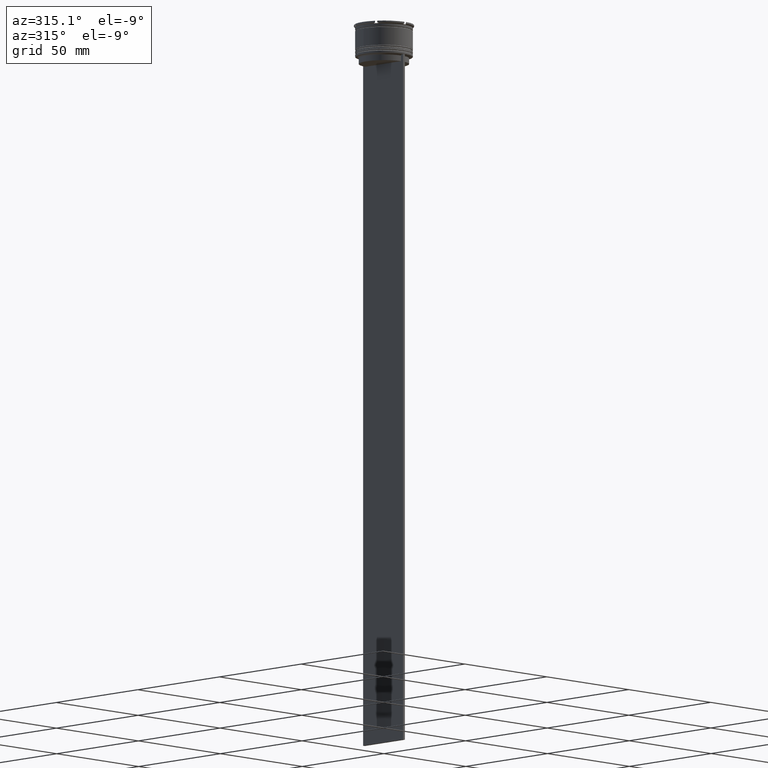
[diagram: clean part render]
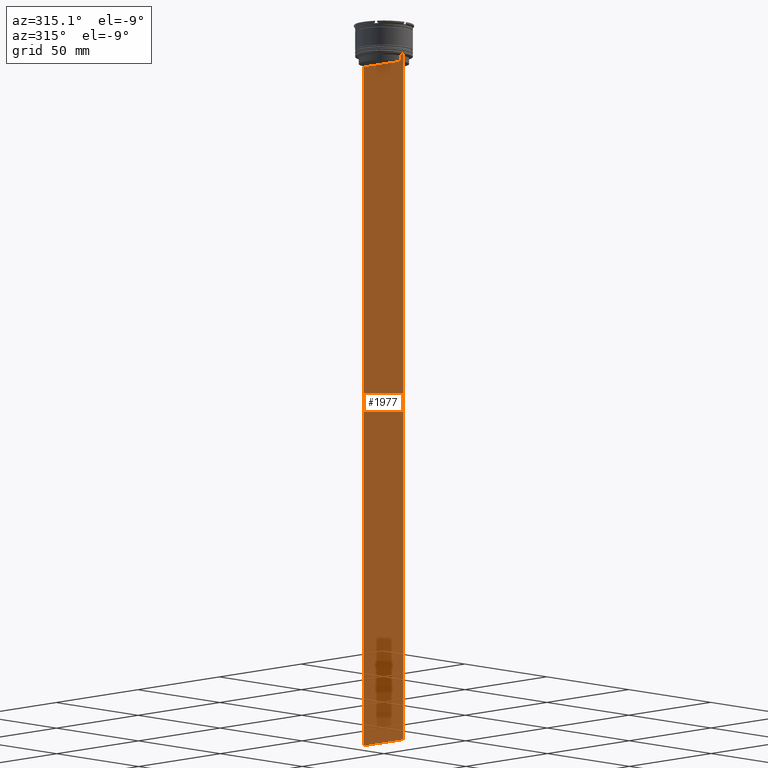
[diagram: same view with one face highlighted and labeled with its STEP entity id]
A machine part, auxiliary view. The second image highlights one B-rep face of the part: STEP entity #1977.
In plain terms, the highlighted planar face has unit normal (-1, 0, 0).
Its self-contained STEP definition (entity closure, byte-faithful):
#48 = CARTESIAN_POINT ( 'NONE',  ( -0.4999999999999997780, 10.88852607105296322, -14.50000000000000000 ) ) ;
#49 = VECTOR ( 'NONE', #95, 1000.000000000000000 ) ;
#61 = VERTEX_POINT ( 'NONE', #606 ) ;
#95 = DIRECTION ( 'NONE',  ( 0.000000000000000000, 1.000000000000000000, 0.000000000000000000 ) ) ;
#100 = VECTOR ( 'NONE', #1369, 1000.000000000000000 ) ;
#140 = CARTESIAN_POINT ( 'NONE',  ( -0.4999999999999997780, -12.25000000000000711, -14.00000000000000178 ) ) ;
#193 = VERTEX_POINT ( 'NONE', #1777 ) ;
#220 = CARTESIAN_POINT ( 'NONE',  ( -0.4999999999999997780, 10.88852607105296322, 0.000000000000000000 ) ) ;
#239 = FACE_OUTER_BOUND ( 'NONE', #1241, .T. ) ;
#297 = EDGE_CURVE ( 'NONE', #2271, #2618, #341, .T. ) ;
#311 = LINE ( 'NONE', #2008, #1614 ) ;
#317 = CARTESIAN_POINT ( 'NONE',  ( -0.4999999999999997780, -12.25000000000000711, 10.52039967047845792 ) ) ;
#341 = B_SPLINE_CURVE_WITH_KNOTS ( 'NONE', 3,
 ( #2600, #2388, #1328, #48 ),
 .UNSPECIFIED., .F., .F.,
 ( 4, 4 ),
 ( 0.01935560801904634073, 0.02006307108468586772 ),
 .UNSPECIFIED. ) ;
#359 = CARTESIAN_POINT ( 'NONE',  ( -0.4999999999999997780, 11.38902980942626719, -14.00000000000000178 ) ) ;
#391 = EDGE_CURVE ( 'NONE', #2757, #193, #311, .T. ) ;
#418 = VECTOR ( 'NONE', #433, 1000.000000000000000 ) ;
#431 = EDGE_CURVE ( 'NONE', #2731, #667, #554, .T. ) ;
#433 = DIRECTION ( 'NONE',  ( 0.000000000000000000, -1.000000000000000000, 0.000000000000000000 ) ) ;
#448 = CARTESIAN_POINT ( 'NONE',  ( -0.4999999999999997780, -11.22219891450652973, -14.16667035398018903 ) ) ;
#520 = ORIENTED_EDGE ( 'NONE', *, *, #899, .F. ) ;
#528 = LINE ( 'NONE', #317, #2170 ) ;
#554 = LINE ( 'NONE', #2049, #100 ) ;
#586 = DIRECTION ( 'NONE',  ( 0.000000000000000000, 0.000000000000000000, -1.000000000000000000 ) ) ;
#606 = CARTESIAN_POINT ( 'NONE',  ( -0.4999999999999997780, -11.38902980942626719, -14.00000000000000178 ) ) ;
#654 = ORIENTED_EDGE ( 'NONE', *, *, #297, .F. ) ;
#667 = VERTEX_POINT ( 'NONE', #1589 ) ;
#679 = CARTESIAN_POINT ( 'NONE',  ( -0.4999999999999997780, -10.88852607105296144, -17.00000000000000000 ) ) ;
#706 = CARTESIAN_POINT ( 'NONE',  ( -0.4999999999999997780, 10.88852607105296144, -17.00000000000000000 ) ) ;
#862 = EDGE_CURVE ( 'NONE', #1758, #2120, #528, .T. ) ;
#897 = LINE ( 'NONE', #2380, #1573 ) ;
#899 = EDGE_CURVE ( 'NONE', #2731, #2271, #2069, .T. ) ;
#922 = ORIENTED_EDGE ( 'NONE', *, *, #391, .F. ) ;
#934 = CARTESIAN_POINT ( 'NONE',  ( -0.4999999999999997780, -11.38902980942626719, -14.00000000000000178 ) ) ;
#1117 = CARTESIAN_POINT ( 'NONE',  ( -0.4999999999999997780, 12.24999999999999289, -14.00000000000000178 ) ) ;
#1137 = EDGE_CURVE ( 'NONE', #61, #1758, #897, .T. ) ;
#1170 = LINE ( 'NONE', #1854, #49 ) ;
#1241 = EDGE_LOOP ( 'NONE', ( #654, #520, #2341, #1548, #1814, #2788, #2164, #922, #2707, #1960 ) ) ;
#1323 = VECTOR ( 'NONE', #2595, 1000.000000000000000 ) ;
#1327 = LINE ( 'NONE', #1337, #418 ) ;
#1328 = CARTESIAN_POINT ( 'NONE',  ( -0.4999999999999997780, 11.05536450345590538, -14.33333719074559376 ) ) ;
#1337 = CARTESIAN_POINT ( 'NONE',  ( -0.4999999999999997780, 10.90000000000000213, -17.00000000000000000 ) ) ;
#1360 = B_SPLINE_CURVE_WITH_KNOTS ( 'NONE', 3,
 ( #2404, #1557, #448, #934 ),
 .UNSPECIFIED., .F., .F.,
 ( 4, 4 ),
 ( 0.05041323384703224469, 0.05112713601261603680 ),
 .UNSPECIFIED. ) ;
#1369 = DIRECTION ( 'NONE',  ( 0.000000000000000000, 0.000000000000000000, -1.000000000000000000 ) ) ;
#1393 = EDGE_CURVE ( 'NONE', #2618, #1530, #2151, .T. ) ;
#1520 = CARTESIAN_POINT ( 'NONE',  ( -0.4999999999999997780, 10.88852607105296322, -14.50000000000000000 ) ) ;
#1530 = VERTEX_POINT ( 'NONE', #706 ) ;
#1548 = ORIENTED_EDGE ( 'NONE', *, *, #1678, .F. ) ;
#1557 = CARTESIAN_POINT ( 'NONE',  ( -0.4999999999999997780, -11.05536450423839057, -14.33333718996393280 ) ) ;
#1573 = VECTOR ( 'NONE', #2433, 1000.000000000000000 ) ;
#1589 = CARTESIAN_POINT ( 'NONE',  ( -0.4999999999999997780, 12.24999999999999289, -314.0000000000000000 ) ) ;
#1601 = CARTESIAN_POINT ( 'NONE',  ( -0.4999999999999997780, -12.25000000000000711, -314.0000000000000000 ) ) ;
#1614 = VECTOR ( 'NONE', #1615, 1000.000000000000000 ) ;
#1615 = DIRECTION ( 'NONE',  ( -0.000000000000000000, -0.000000000000000000, 1.000000000000000000 ) ) ;
#1678 = EDGE_CURVE ( 'NONE', #2120, #667, #1170, .T. ) ;
#1748 = DIRECTION ( 'NONE',  ( -1.000000000000000000, 0.000000000000000000, 0.000000000000000000 ) ) ;
#1758 = VERTEX_POINT ( 'NONE', #140 ) ;
#1777 = CARTESIAN_POINT ( 'NONE',  ( -0.4999999999999997780, -10.88852607105296322, -14.50000000000000000 ) ) ;
#1814 = ORIENTED_EDGE ( 'NONE', *, *, #862, .F. ) ;
#1854 = CARTESIAN_POINT ( 'NONE',  ( -0.4999999999999997780, -12.25000000000000711, -314.0000000000000000 ) ) ;
#1875 = DIRECTION ( 'NONE',  ( 0.000000000000000000, 0.000000000000000000, -1.000000000000000000 ) ) ;
#1927 = EDGE_CURVE ( 'NONE', #1530, #2757, #1327, .T. ) ;
#1942 = VECTOR ( 'NONE', #586, 1000.000000000000000 ) ;
#1960 = ORIENTED_EDGE ( 'NONE', *, *, #1393, .F. ) ;
#1977 = ADVANCED_FACE ( 'NONE', ( #239 ), #2412, .T. ) ;
#2008 = CARTESIAN_POINT ( 'NONE',  ( -0.4999999999999997780, -10.88852607105296322, 0.000000000000000000 ) ) ;
#2049 = CARTESIAN_POINT ( 'NONE',  ( -0.4999999999999997780, 12.24999999999999289, 10.52039967047845792 ) ) ;
#2069 = LINE ( 'NONE', #2702, #1323 ) ;
#2120 = VERTEX_POINT ( 'NONE', #1601 ) ;
#2151 = LINE ( 'NONE', #220, #1942 ) ;
#2164 = ORIENTED_EDGE ( 'NONE', *, *, #2766, .F. ) ;
#2170 = VECTOR ( 'NONE', #1875, 1000.000000000000000 ) ;
#2207 = AXIS2_PLACEMENT_3D ( 'NONE', #2599, #1748, #2632 ) ;
#2271 = VERTEX_POINT ( 'NONE', #359 ) ;
#2341 = ORIENTED_EDGE ( 'NONE', *, *, #431, .T. ) ;
#2380 = CARTESIAN_POINT ( 'NONE',  ( -0.4999999999999997780, -12.25000000000000711, -14.00000000000000178 ) ) ;
#2388 = CARTESIAN_POINT ( 'NONE',  ( -0.4999999999999997780, 11.22219891375843304, -14.16667035472756808 ) ) ;
#2404 = CARTESIAN_POINT ( 'NONE',  ( -0.4999999999999997780, -10.88852607105296322, -14.50000000000000000 ) ) ;
#2412 = PLANE ( 'NONE',  #2207 ) ;
#2433 = DIRECTION ( 'NONE',  ( 0.000000000000000000, -1.000000000000000000, 0.000000000000000000 ) ) ;
#2595 = DIRECTION ( 'NONE',  ( 0.000000000000000000, -1.000000000000000000, 0.000000000000000000 ) ) ;
#2599 = CARTESIAN_POINT ( 'NONE',  ( -0.4999999999999997780, -12.25000000000000711, 10.52039967047845792 ) ) ;
#2600 = CARTESIAN_POINT ( 'NONE',  ( -0.4999999999999997780, 11.38902980942626719, -14.00000000000000178 ) ) ;
#2618 = VERTEX_POINT ( 'NONE', #1520 ) ;
#2632 = DIRECTION ( 'NONE',  ( 0.000000000000000000, 0.000000000000000000, 1.000000000000000000 ) ) ;
#2702 = CARTESIAN_POINT ( 'NONE',  ( -0.4999999999999997780, -12.25000000000000711, -14.00000000000000178 ) ) ;
#2707 = ORIENTED_EDGE ( 'NONE', *, *, #1927, .F. ) ;
#2731 = VERTEX_POINT ( 'NONE', #1117 ) ;
#2757 = VERTEX_POINT ( 'NONE', #679 ) ;
#2766 = EDGE_CURVE ( 'NONE', #193, #61, #1360, .T. ) ;
#2788 = ORIENTED_EDGE ( 'NONE', *, *, #1137, .F. ) ;